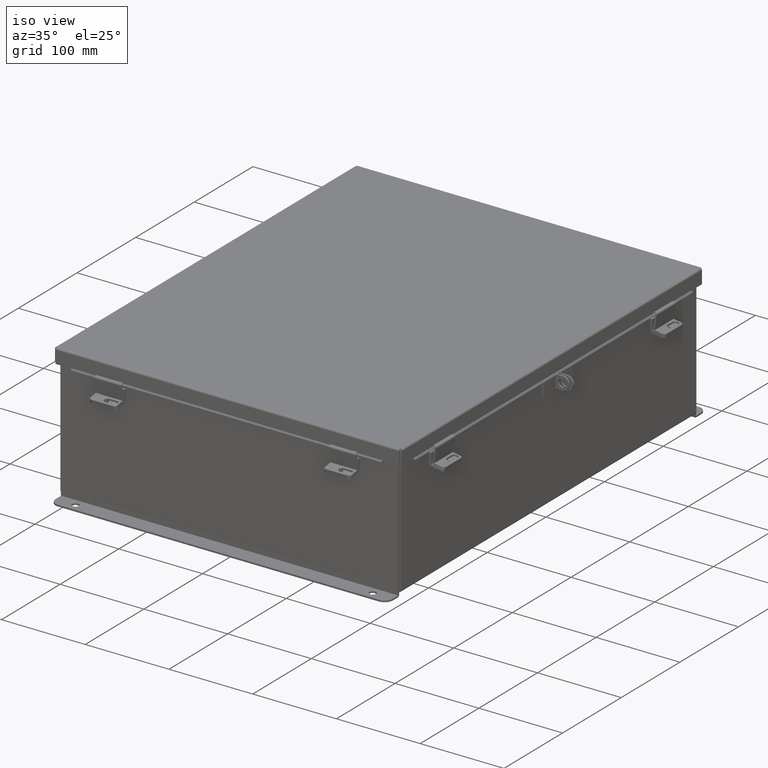
[diagram: clean part render]
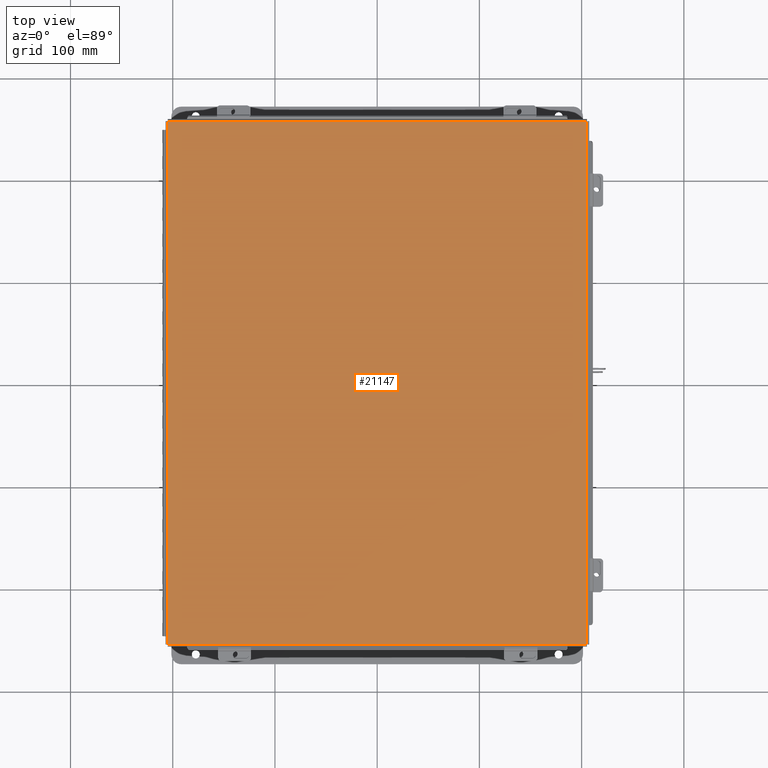
[diagram: tour spotlight — one face highlighted and labeled with its STEP entity id]
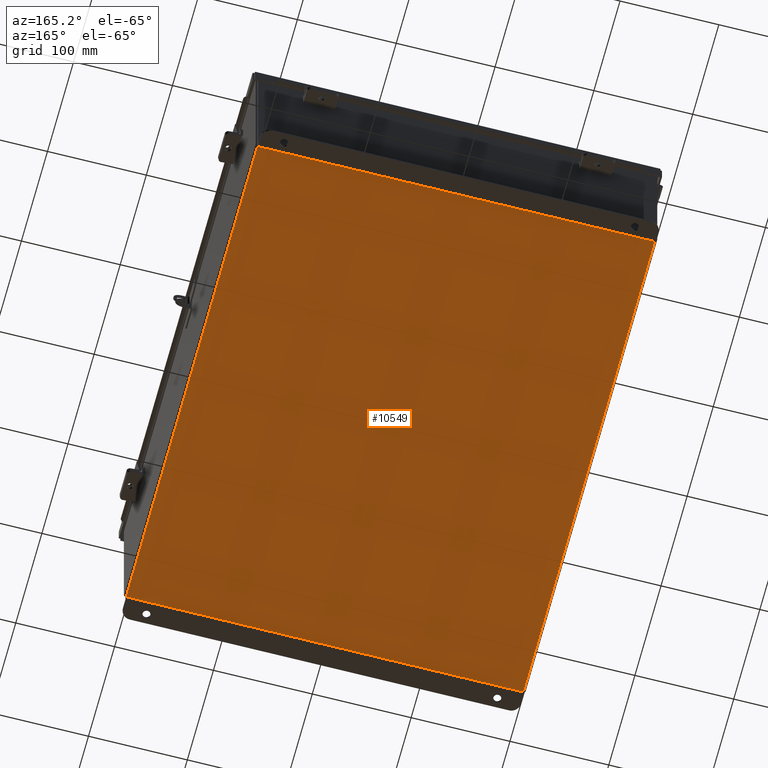
[diagram: tour spotlight — one face highlighted and labeled with its STEP entity id]
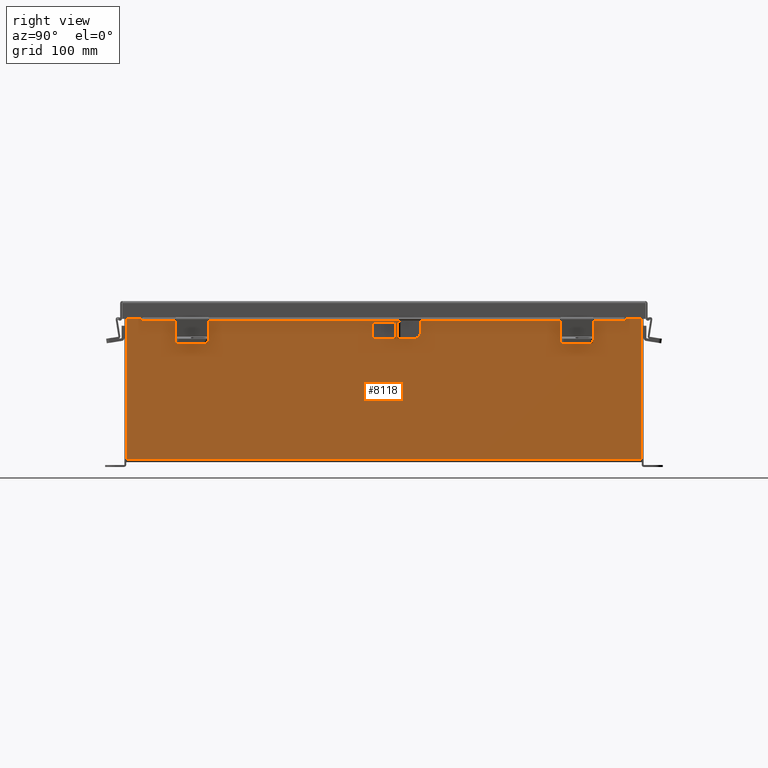
[diagram: tour spotlight — one face highlighted and labeled with its STEP entity id]
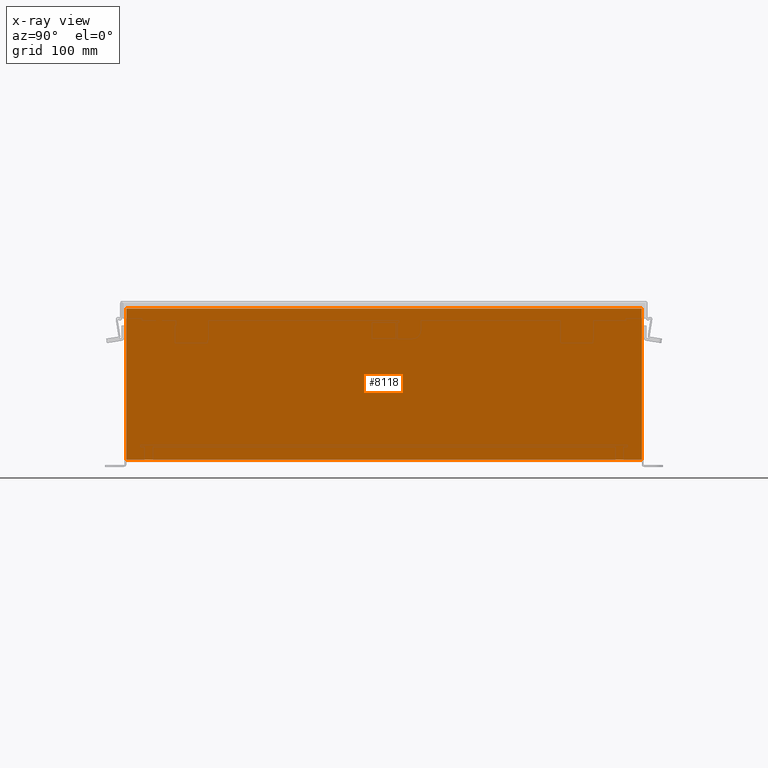
[diagram: x-ray of the same camera — body ghosted, this tour face saturated]
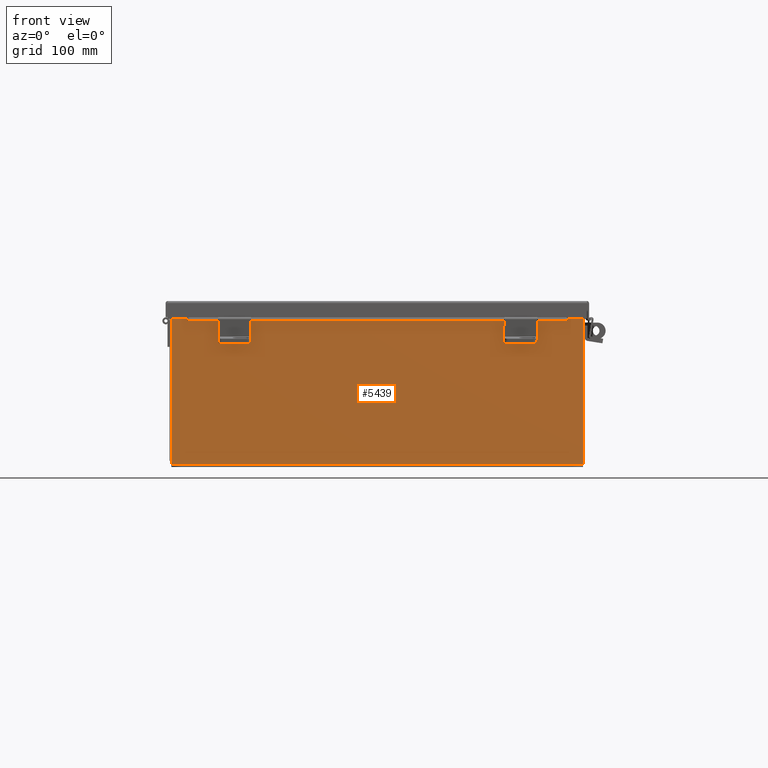
[diagram: tour spotlight — one face highlighted and labeled with its STEP entity id]
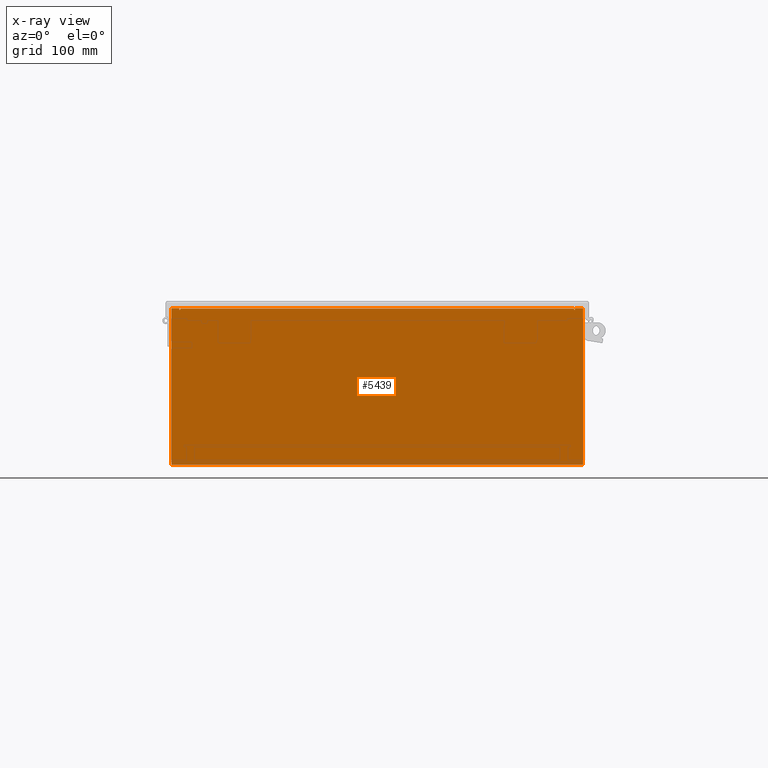
[diagram: x-ray of the same camera — body ghosted, this tour face saturated]
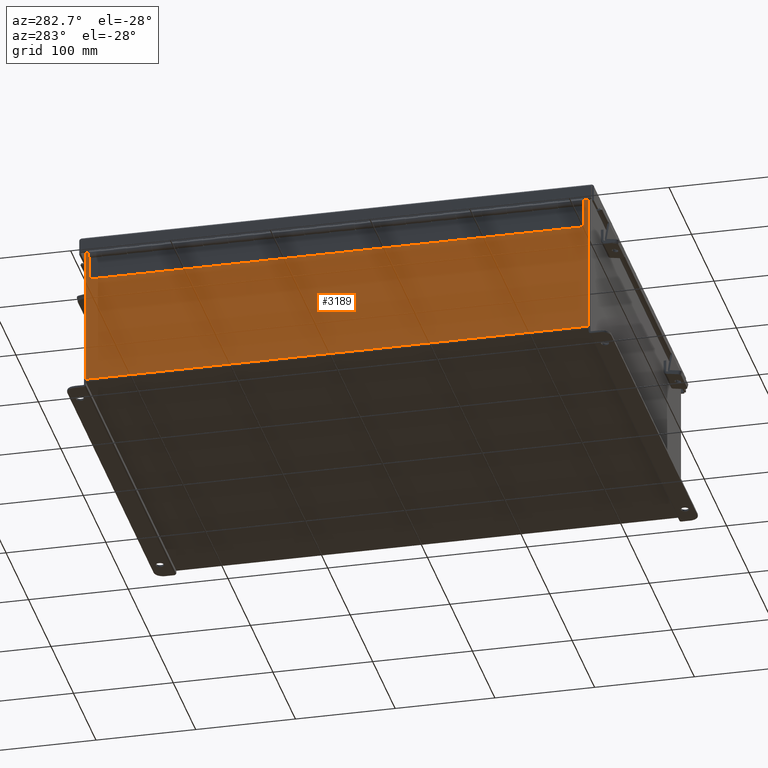
[diagram: tour spotlight — one face highlighted and labeled with its STEP entity id]
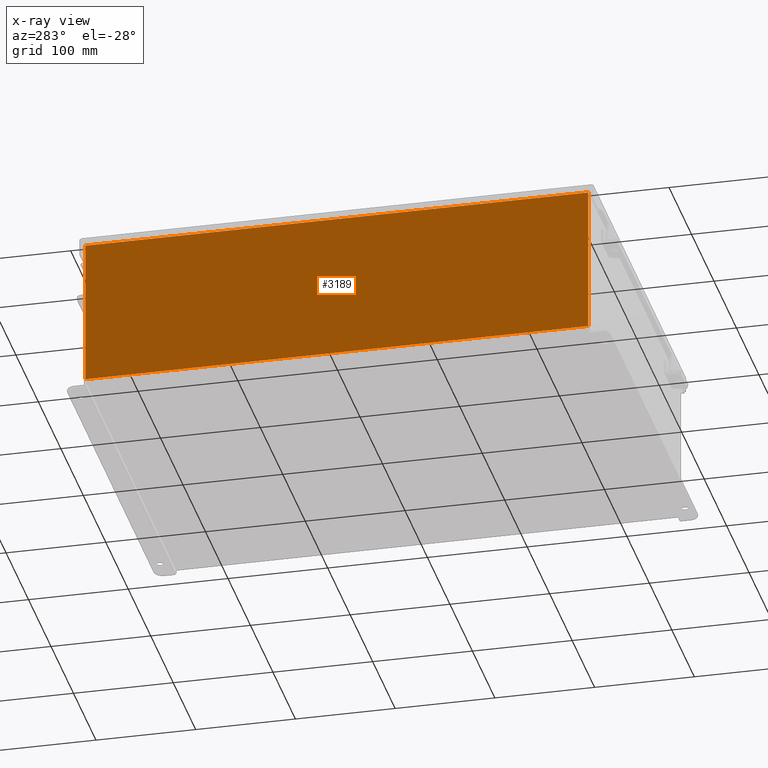
[diagram: x-ray of the same camera — body ghosted, this tour face saturated]
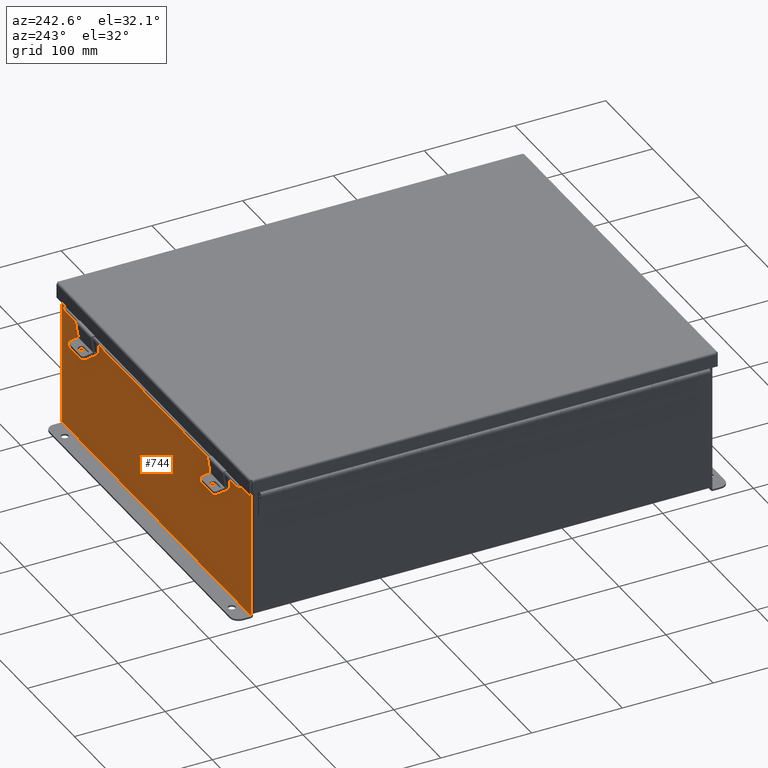
[diagram: tour spotlight — one face highlighted and labeled with its STEP entity id]
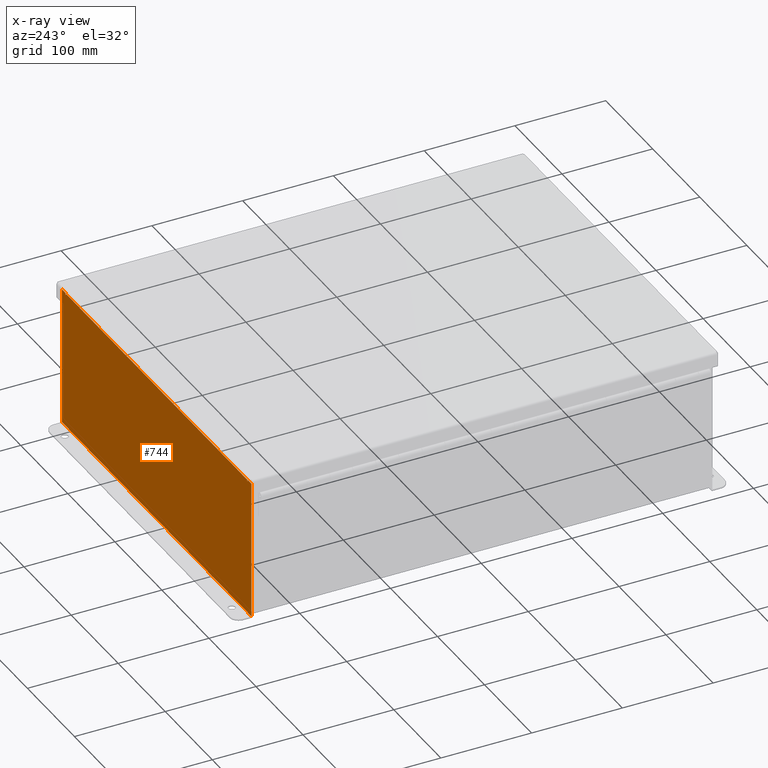
[diagram: x-ray of the same camera — body ghosted, this tour face saturated]
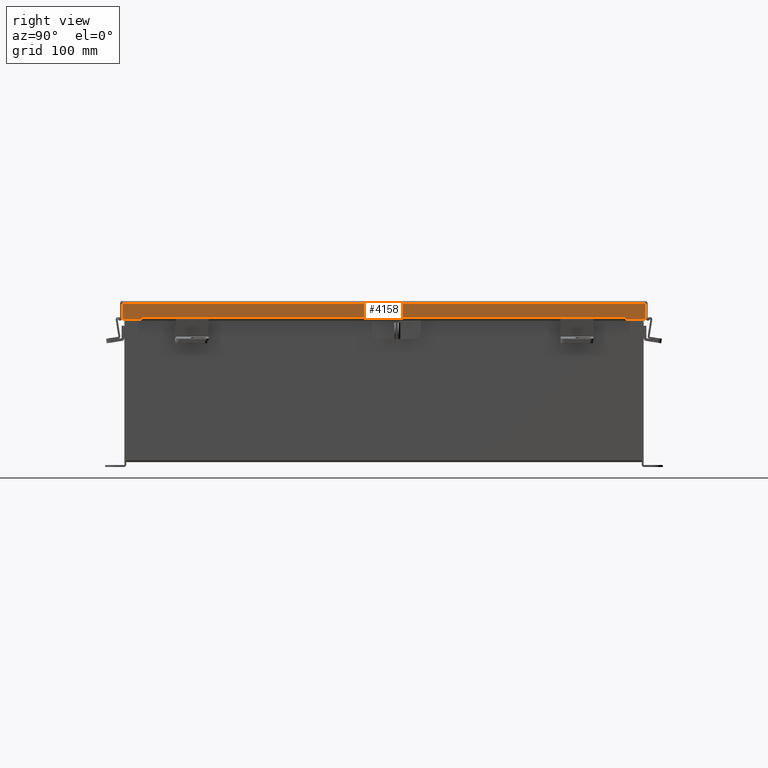
[diagram: tour spotlight — one face highlighted and labeled with its STEP entity id]
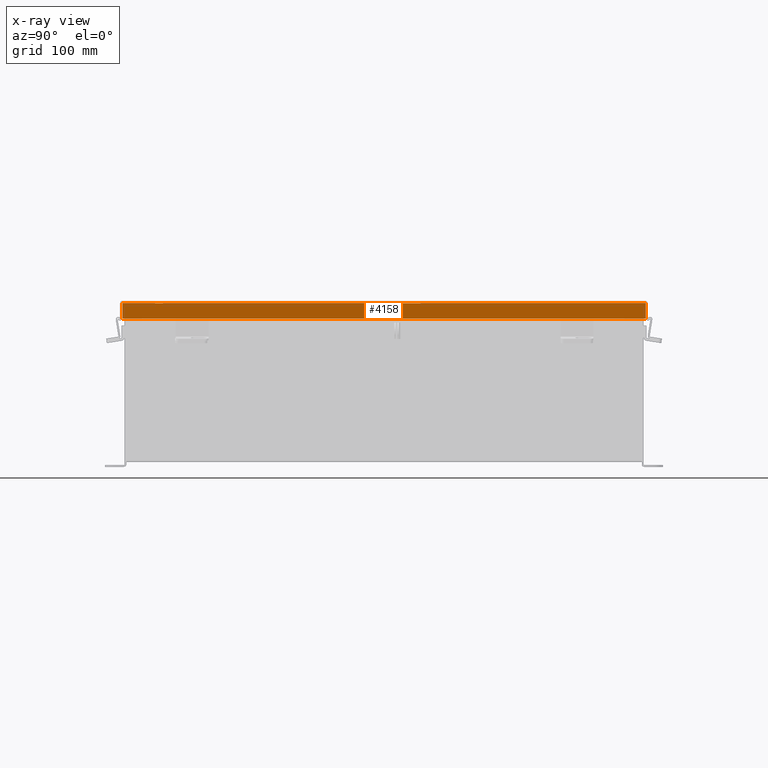
[diagram: x-ray of the same camera — body ghosted, this tour face saturated]
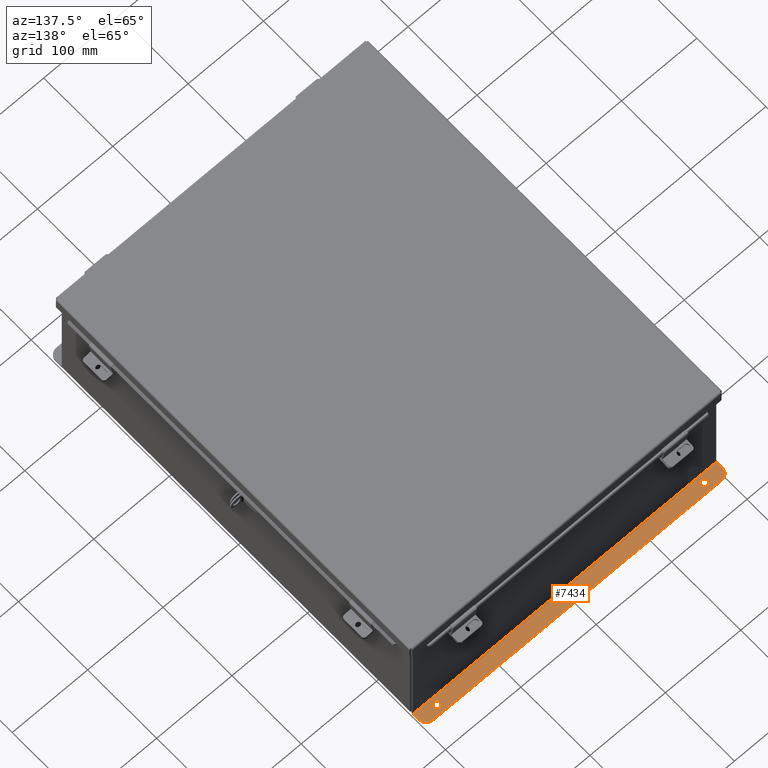
[diagram: tour spotlight — one face highlighted and labeled with its STEP entity id]
A machine part: a face-by-face anatomy tour. The part has 938 B-rep faces; the first image is the clean iso view, then the 8 largest visible faces are spotlighted one at a time (largest first), each with its STEP entity span.

Face 1 — top view, entity #21147. In plain terms, the highlighted planar face has unit normal (-0, -0, 1).
Definition (entity closure, byte-faithful):
#1525 = DIRECTION ( 'NONE',  ( -3.166671605124525800E-030, -1.000000000000000000, -1.853823127269377700E-029 ) ) ;
#2421 = PLANE ( 'NONE',  #20231 ) ;
#3212 = LINE ( 'NONE', #8577, #16986 ) ;
#3631 = EDGE_CURVE ( 'NONE', #20027, #15240, #6995, .T. ) ;
#6443 = VECTOR ( 'NONE', #1525, 39.37007874015748100 ) ;
#6580 = DIRECTION ( 'NONE',  ( -1.000000000000000000, -3.215975411700707400E-030, -0.0000000000000000000 ) ) ;
#6995 = LINE ( 'NONE', #22161, #6443 ) ;
#7557 = CARTESIAN_POINT ( 'NONE',  ( -8.068550000000033900, -10.07447893218813400, -0.07470000000000015500 ) ) ;
#7691 = DIRECTION ( 'NONE',  ( 5.938065620492508100E-059, -1.846427556282924300E-029, -1.000000000000000000 ) ) ;
#8105 = DIRECTION ( 'NONE',  ( 1.000000000000000000, 3.215975411700707400E-030, -0.0000000000000000000 ) ) ;
#8205 = EDGE_CURVE ( 'NONE', #20542, #19558, #21953, .T. ) ;
#8455 = ORIENTED_EDGE ( 'NONE', *, *, #15905, .T. ) ;
#8577 = CARTESIAN_POINT ( 'NONE',  ( 8.074478932188169400, -10.06854999999999800, -0.07470000000000015500 ) ) ;
#8718 = CARTESIAN_POINT ( 'NONE',  ( -8.068550000000033900, -10.06854999999999800, -0.07470000000000015500 ) ) ;
#9055 = CARTESIAN_POINT ( 'NONE',  ( 8.068550000000033900, 10.06854999999999800, -0.07470000000000015500 ) ) ;
#9553 = LINE ( 'NONE', #16701, #18722 ) ;
#10734 = ORIENTED_EDGE ( 'NONE', *, *, #11299, .T. ) ;
#11299 = EDGE_CURVE ( 'NONE', #15240, #20542, #3212, .T. ) ;
#12776 = VECTOR ( 'NONE', #13354, 39.37007874015748100 ) ;
#13354 = DIRECTION ( 'NONE',  ( 3.166671605124525800E-030, 1.000000000000000000, 1.853823127269377700E-029 ) ) ;
#14653 = CARTESIAN_POINT ( 'NONE',  ( 8.068550000000033900, -10.06854999999999800, -0.07470000000000015500 ) ) ;
#15240 = VERTEX_POINT ( 'NONE', #14653 ) ;
#15552 = FACE_OUTER_BOUND ( 'NONE', #17335, .T. ) ;
#15905 = EDGE_CURVE ( 'NONE', #19558, #20027, #9553, .T. ) ;
#16356 = ORIENTED_EDGE ( 'NONE', *, *, #3631, .T. ) ;
#16701 = CARTESIAN_POINT ( 'NONE',  ( -8.074478932188169400, 10.06854999999999800, -0.07470000000000015500 ) ) ;
#16986 = VECTOR ( 'NONE', #6580, 39.37007874015748100 ) ;
#17335 = EDGE_LOOP ( 'NONE', ( #8455, #16356, #10734, #20547 ) ) ;
#17994 = CARTESIAN_POINT ( 'NONE',  ( 0.0000000000000000000, 0.0000000000000000000, -0.07470000000000015500 ) ) ;
#18357 = CARTESIAN_POINT ( 'NONE',  ( -8.068550000000033900, 10.06854999999999800, -0.07470000000000015500 ) ) ;
#18722 = VECTOR ( 'NONE', #8105, 39.37007874015748100 ) ;
#19558 = VERTEX_POINT ( 'NONE', #18357 ) ;
#19814 = DIRECTION ( 'NONE',  ( -1.000000000000000000, -3.215975411700707400E-030, 0.0000000000000000000 ) ) ;
#20027 = VERTEX_POINT ( 'NONE', #9055 ) ;
#20231 = AXIS2_PLACEMENT_3D ( 'NONE', #17994, #7691, #19814 ) ;
#20542 = VERTEX_POINT ( 'NONE', #8718 ) ;
#20547 = ORIENTED_EDGE ( 'NONE', *, *, #8205, .T. ) ;
#21147 = ADVANCED_FACE ( 'NONE', ( #15552 ), #2421, .T. ) ;
#21953 = LINE ( 'NONE', #7557, #12776 ) ;
#22161 = CARTESIAN_POINT ( 'NONE',  ( 8.068550000000033900, 10.07447893218813400, -0.07470000000000015500 ) ) ;

Face 2 — auxiliary view, entity #10549. In plain terms, the highlighted planar face has unit normal (0, 0, -1).
Definition (entity closure, byte-faithful):
#550 = DIRECTION ( 'NONE',  ( 1.000000000000000000, -1.365923996832131600E-016, 0.0000000000000000000 ) ) ;
#766 = ORIENTED_EDGE ( 'NONE', *, *, #10144, .T. ) ;
#2845 = CARTESIAN_POINT ( 'NONE',  ( -7.912299999999996600, -9.925299999999998200, -0.07470000000000130700 ) ) ;
#2930 = CARTESIAN_POINT ( 'NONE',  ( 0.0000000000000000000, 0.0000000000000000000, -0.07470000000000000300 ) ) ;
#3223 = CARTESIAN_POINT ( 'NONE',  ( 7.912300000000002800, 9.925299999999992900, -0.07469999999999994700 ) ) ;
#4403 = LINE ( 'NONE', #6559, #17647 ) ;
#4473 = DIRECTION ( 'NONE',  ( -1.000000000000000000, -0.0000000000000000000, -0.0000000000000000000 ) ) ;
#5987 = LINE ( 'NONE', #21265, #14668 ) ;
#6134 = AXIS2_PLACEMENT_3D ( 'NONE', #2930, #16746, #8150 ) ;
#6374 = CARTESIAN_POINT ( 'NONE',  ( -7.912299999999996600, -9.925299999999998200, -0.07470000000000130700 ) ) ;
#6559 = CARTESIAN_POINT ( 'NONE',  ( -7.999999999999996400, 9.925299999999998200, -0.07470000000000000300 ) ) ;
#6764 = CARTESIAN_POINT ( 'NONE',  ( -7.912299999999996600, 9.925299999999998200, -0.07470000000000000300 ) ) ;
#6891 = EDGE_CURVE ( 'NONE', #10358, #11718, #4403, .T. ) ;
#7682 = VERTEX_POINT ( 'NONE', #18254 ) ;
#7806 = EDGE_LOOP ( 'NONE', ( #19819, #20201, #11382, #766 ) ) ;
#8150 = DIRECTION ( 'NONE',  ( -1.000000000000000000, 0.0000000000000000000, -0.0000000000000000000 ) ) ;
#8984 = LINE ( 'NONE', #11002, #22238 ) ;
#9155 = VECTOR ( 'NONE', #11579, 39.37007874015748100 ) ;
#9481 = VERTEX_POINT ( 'NONE', #2845 ) ;
#10144 = EDGE_CURVE ( 'NONE', #9481, #11718, #18325, .T. ) ;
#10358 = VERTEX_POINT ( 'NONE', #3223 ) ;
#10549 = ADVANCED_FACE ( 'NONE', ( #13284 ), #16823, .T. ) ;
#11002 = CARTESIAN_POINT ( 'NONE',  ( 7.912300000000002800, 9.925299999999996500, -0.07469999999999994700 ) ) ;
#11382 = ORIENTED_EDGE ( 'NONE', *, *, #16337, .F. ) ;
#11579 = DIRECTION ( 'NONE',  ( -0.0000000000000000000, 1.000000000000000000, 8.208677865577646300E-017 ) ) ;
#11718 = VERTEX_POINT ( 'NONE', #6764 ) ;
#13284 = FACE_OUTER_BOUND ( 'NONE', #7806, .T. ) ;
#14539 = DIRECTION ( 'NONE',  ( -0.0000000000000000000, -1.000000000000000000, -0.0000000000000000000 ) ) ;
#14668 = VECTOR ( 'NONE', #550, 39.37007874015748100 ) ;
#16337 = EDGE_CURVE ( 'NONE', #9481, #7682, #5987, .T. ) ;
#16396 = EDGE_CURVE ( 'NONE', #10358, #7682, #8984, .T. ) ;
#16746 = DIRECTION ( 'NONE',  ( 0.0000000000000000000, 0.0000000000000000000, -1.000000000000000000 ) ) ;
#16823 = PLANE ( 'NONE',  #6134 ) ;
#17647 = VECTOR ( 'NONE', #4473, 39.37007874015748100 ) ;
#18254 = CARTESIAN_POINT ( 'NONE',  ( 7.912300000000002800, -9.925300000000000000, -0.07470000000000000300 ) ) ;
#18325 = LINE ( 'NONE', #6374, #9155 ) ;
#19819 = ORIENTED_EDGE ( 'NONE', *, *, #6891, .F. ) ;
#20201 = ORIENTED_EDGE ( 'NONE', *, *, #16396, .T. ) ;
#21265 = CARTESIAN_POINT ( 'NONE',  ( -7.999999999999996400, -9.925299999999998200, -0.07470000000000000300 ) ) ;
#22238 = VECTOR ( 'NONE', #14539, 39.37007874015748100 ) ;

Face 3 — right view, entity #8118. An x-ray twin of the same camera follows (body ghosted, this face saturated) — the face is partly hidden behind the body. In plain terms, the highlighted planar face has unit normal (-1, 0, 0).
Definition (entity closure, byte-faithful):
#88 = CARTESIAN_POINT ( 'NONE',  ( 8.000000000000003600, 0.0000000000000000000, -2.865025583355396000E-014 ) ) ;
#234 = CARTESIAN_POINT ( 'NONE',  ( 8.000000000000003600, 9.925299999999998200, -2.494518699214680400E-014 ) ) ;
#818 = VERTEX_POINT ( 'NONE', #8306 ) ;
#1105 = CARTESIAN_POINT ( 'NONE',  ( 8.000000000000023100, -9.925300000000000000, 5.837600000000000100 ) ) ;
#1889 = CARTESIAN_POINT ( 'NONE',  ( 8.000000000000023100, 9.925299999999992900, 5.837600000000000100 ) ) ;
#2671 = VECTOR ( 'NONE', #17727, 39.37007874015748100 ) ;
#3341 = EDGE_CURVE ( 'NONE', #20278, #17348, #7286, .T. ) ;
#3450 = DIRECTION ( 'NONE',  ( -0.0000000000000000000, -1.000000000000000000, -0.0000000000000000000 ) ) ;
#4627 = EDGE_CURVE ( 'NONE', #818, #17097, #12147, .T. ) ;
#4957 = VECTOR ( 'NONE', #3450, 39.37007874015748100 ) ;
#5653 = CARTESIAN_POINT ( 'NONE',  ( 8.000000000000003600, -9.925300000000000000, -2.865025583355396000E-014 ) ) ;
#5740 = DIRECTION ( 'NONE',  ( -0.0000000000000000000, -1.000000000000000000, -0.0000000000000000000 ) ) ;
#6236 = FACE_OUTER_BOUND ( 'NONE', #16845, .T. ) ;
#7286 = LINE ( 'NONE', #5653, #2671 ) ;
#7486 = VECTOR ( 'NONE', #17042, 39.37007874015748100 ) ;
#8118 = ADVANCED_FACE ( 'NONE', ( #6236 ), #11522, .F. ) ;
#8306 = CARTESIAN_POINT ( 'NONE',  ( 8.000000000000003600, 9.925299999999992900, 0.01299999999999984300 ) ) ;
#9102 = CARTESIAN_POINT ( 'NONE',  ( 8.000000000000003600, -9.925300000000000000, 0.01299999999999984300 ) ) ;
#9590 = LINE ( 'NONE', #15472, #4957 ) ;
#10056 = ORIENTED_EDGE ( 'NONE', *, *, #3341, .T. ) ;
#11522 = PLANE ( 'NONE',  #15846 ) ;
#11716 = DIRECTION ( 'NONE',  ( 3.548703509357741000E-015, 0.0000000000000000000, 1.000000000000000000 ) ) ;
#12147 = LINE ( 'NONE', #234, #7486 ) ;
#13200 = DIRECTION ( 'NONE',  ( -1.000000000000000000, 0.0000000000000000000, 3.548703509357741000E-015 ) ) ;
#13791 = ORIENTED_EDGE ( 'NONE', *, *, #18385, .F. ) ;
#14851 = LINE ( 'NONE', #9102, #18899 ) ;
#14909 = EDGE_CURVE ( 'NONE', #17097, #20278, #9590, .T. ) ;
#15472 = CARTESIAN_POINT ( 'NONE',  ( 8.000000000000023100, 9.925299999999996500, 5.837600000000000100 ) ) ;
#15846 = AXIS2_PLACEMENT_3D ( 'NONE', #88, #13200, #11716 ) ;
#16845 = EDGE_LOOP ( 'NONE', ( #18712, #10056, #13791, #22210 ) ) ;
#17042 = DIRECTION ( 'NONE',  ( 3.548703509357741800E-015, -3.735477378271307500E-016, 1.000000000000000000 ) ) ;
#17097 = VERTEX_POINT ( 'NONE', #1889 ) ;
#17348 = VERTEX_POINT ( 'NONE', #20151 ) ;
#17727 = DIRECTION ( 'NONE',  ( -3.548703509357741800E-015, 0.0000000000000000000, -1.000000000000000000 ) ) ;
#18385 = EDGE_CURVE ( 'NONE', #818, #17348, #14851, .T. ) ;
#18712 = ORIENTED_EDGE ( 'NONE', *, *, #14909, .T. ) ;
#18899 = VECTOR ( 'NONE', #5740, 39.37007874015748100 ) ;
#20151 = CARTESIAN_POINT ( 'NONE',  ( 8.000000000000003600, -9.925300000000000000, 0.01299999999999984300 ) ) ;
#20278 = VERTEX_POINT ( 'NONE', #1105 ) ;
#22210 = ORIENTED_EDGE ( 'NONE', *, *, #4627, .T. ) ;

Face 4 — front view, entity #5439. An x-ray twin of the same camera follows (body ghosted, this face saturated) — the face is partly hidden behind the body. In plain terms, the highlighted planar face has unit normal (-0, 1, -0).
Definition (entity closure, byte-faithful):
#200 = VECTOR ( 'NONE', #918, 39.37007874015748100 ) ;
#315 = VERTEX_POINT ( 'NONE', #10609 ) ;
#746 = LINE ( 'NONE', #4713, #9413 ) ;
#879 = EDGE_CURVE ( 'NONE', #315, #11404, #20682, .T. ) ;
#918 = DIRECTION ( 'NONE',  ( 0.0000000000000000000, 0.0000000000000000000, 1.000000000000000000 ) ) ;
#1001 = EDGE_CURVE ( 'NONE', #5038, #18583, #1198, .T. ) ;
#1198 = LINE ( 'NONE', #11605, #19034 ) ;
#1947 = CARTESIAN_POINT ( 'NONE',  ( 7.582300000000006300, 0.0000000000000000000, 2.912299999999998800 ) ) ;
#2356 = ORIENTED_EDGE ( 'NONE', *, *, #12470, .F. ) ;
#2859 = LINE ( 'NONE', #14730, #15569 ) ;
#3027 = LINE ( 'NONE', #14124, #17345 ) ;
#3188 = ORIENTED_EDGE ( 'NONE', *, *, #16255, .F. ) ;
#3288 = CIRCLE ( 'NONE', #18808, 0.01867500000000003900 ) ;
#4246 = AXIS2_PLACEMENT_3D ( 'NONE', #12668, #5790, #8243 ) ;
#4362 = CARTESIAN_POINT ( 'NONE',  ( 7.925300000000007100, 0.0000000000000000000, 2.925300000000000000 ) ) ;
#4443 = VECTOR ( 'NONE', #6368, 39.37007874015748100 ) ;
#4713 = CARTESIAN_POINT ( 'NONE',  ( -7.925299999999992000, 0.0000000000000000000, 2.925300000000000000 ) ) ;
#4775 = ORIENTED_EDGE ( 'NONE', *, *, #15169, .T. ) ;
#4889 = CARTESIAN_POINT ( 'NONE',  ( -7.925299999999992000, 0.0000000000000000000, 2.925300000000000000 ) ) ;
#4972 = LINE ( 'NONE', #9880, #4443 ) ;
#4977 = CARTESIAN_POINT ( 'NONE',  ( 7.925300000000007100, 0.0000000000000000000, -3.099299999999999900 ) ) ;
#5038 = VERTEX_POINT ( 'NONE', #10115 ) ;
#5411 = EDGE_CURVE ( 'NONE', #5038, #11530, #20760, .T. ) ;
#5439 = ADVANCED_FACE ( 'NONE', ( #16659 ), #11648, .F. ) ;
#5790 = DIRECTION ( 'NONE',  ( 4.910036603141682400E-031, 1.000000000000000000, -0.0000000000000000000 ) ) ;
#5894 = EDGE_CURVE ( 'NONE', #18554, #14818, #2859, .T. ) ;
#6128 = ORIENTED_EDGE ( 'NONE', *, *, #21967, .F. ) ;
#6368 = DIRECTION ( 'NONE',  ( 1.000000000000000000, 4.910036603141682400E-031, -0.0000000000000000000 ) ) ;
#6456 = DIRECTION ( 'NONE',  ( 1.000000000000000000, 4.910036603141682400E-031, 0.0000000000000000000 ) ) ;
#7036 = ORIENTED_EDGE ( 'NONE', *, *, #1001, .F. ) ;
#7204 = DIRECTION ( 'NONE',  ( 0.0000000000000000000, 0.0000000000000000000, 1.000000000000000000 ) ) ;
#7308 = VERTEX_POINT ( 'NONE', #10812 ) ;
#7395 = CARTESIAN_POINT ( 'NONE',  ( -7.619649999999992900, 0.0000000000000000000, 2.925300000000000000 ) ) ;
#7758 = ORIENTED_EDGE ( 'NONE', *, *, #5411, .T. ) ;
#8243 = DIRECTION ( 'NONE',  ( 0.0000000000000000000, 0.0000000000000000000, -1.000000000000000000 ) ) ;
#9301 = DIRECTION ( 'NONE',  ( 0.0000000000000000000, 0.0000000000000000000, -1.000000000000000000 ) ) ;
#9413 = VECTOR ( 'NONE', #6456, 39.37007874015748100 ) ;
#9427 = VERTEX_POINT ( 'NONE', #7395 ) ;
#9552 = DIRECTION ( 'NONE',  ( 4.910036603141682400E-031, 1.000000000000000000, -0.0000000000000000000 ) ) ;
#9758 = DIRECTION ( 'NONE',  ( -4.910036603141682400E-031, -1.000000000000000000, -0.0000000000000000000 ) ) ;
#9855 = LINE ( 'NONE', #17901, #17955 ) ;
#9880 = CARTESIAN_POINT ( 'NONE',  ( -7.925299999999992000, 0.0000000000000000000, -3.099299999999999900 ) ) ;
#10115 = CARTESIAN_POINT ( 'NONE',  ( -7.582299999999992900, 2.185478394931410600E-015, 2.912299999999998800 ) ) ;
#10157 = VECTOR ( 'NONE', #16638, 39.37007874015748100 ) ;
#10482 = DIRECTION ( 'NONE',  ( 1.000000000000000000, 4.910036603141682400E-031, -0.0000000000000000000 ) ) ;
#10487 = VECTOR ( 'NONE', #21103, 39.37007874015748100 ) ;
#10609 = CARTESIAN_POINT ( 'NONE',  ( 7.619650000000005400, 0.0000000000000000000, 2.874949999999997900 ) ) ;
#10812 = CARTESIAN_POINT ( 'NONE',  ( 7.619650000000006300, 0.0000000000000000000, 2.925300000000000000 ) ) ;
#11035 = LINE ( 'NONE', #21858, #10487 ) ;
#11246 = VERTEX_POINT ( 'NONE', #4362 ) ;
#11249 = LINE ( 'NONE', #14932, #10157 ) ;
#11303 = CARTESIAN_POINT ( 'NONE',  ( -7.619650000000001800, 0.0000000000000000000, 0.0000000000000000000 ) ) ;
#11404 = VERTEX_POINT ( 'NONE', #20257 ) ;
#11498 = EDGE_LOOP ( 'NONE', ( #2356, #18102, #7036, #7758, #3188, #16174, #18418, #13048, #4775, #6128, #22434, #17291 ) ) ;
#11530 = VERTEX_POINT ( 'NONE', #1947 ) ;
#11605 = CARTESIAN_POINT ( 'NONE',  ( -7.582300000000001800, 0.0000000000000000000, 0.0000000000000000000 ) ) ;
#11648 = PLANE ( 'NONE',  #18591 ) ;
#12470 = EDGE_CURVE ( 'NONE', #19396, #9427, #17491, .T. ) ;
#12668 = CARTESIAN_POINT ( 'NONE',  ( 7.600975000000005400, 0.0000000000000000000, 2.874949999999997900 ) ) ;
#12828 = EDGE_CURVE ( 'NONE', #7308, #315, #11035, .T. ) ;
#13048 = ORIENTED_EDGE ( 'NONE', *, *, #21916, .T. ) ;
#13227 = DIRECTION ( 'NONE',  ( 0.0000000000000000000, 0.0000000000000000000, -1.000000000000000000 ) ) ;
#14124 = CARTESIAN_POINT ( 'NONE',  ( 7.582299999999997400, 0.0000000000000000000, 0.0000000000000000000 ) ) ;
#14263 = VERTEX_POINT ( 'NONE', #4977 ) ;
#14417 = CARTESIAN_POINT ( 'NONE',  ( -7.582299999999992900, 2.185478394931410600E-015, 2.912299999999998800 ) ) ;
#14730 = CARTESIAN_POINT ( 'NONE',  ( -7.925299999999992000, 0.0000000000000000000, 2.925300000000000000 ) ) ;
#14818 = VERTEX_POINT ( 'NONE', #4889 ) ;
#14932 = CARTESIAN_POINT ( 'NONE',  ( -7.925299999999992000, 0.0000000000000000000, 2.925300000000000000 ) ) ;
#15169 = EDGE_CURVE ( 'NONE', #11246, #14263, #9855, .T. ) ;
#15569 = VECTOR ( 'NONE', #20018, 39.37007874015748100 ) ;
#16174 = ORIENTED_EDGE ( 'NONE', *, *, #879, .F. ) ;
#16239 = CARTESIAN_POINT ( 'NONE',  ( -7.619649999999992000, 0.0000000000000000000, 2.874949999999997900 ) ) ;
#16255 = EDGE_CURVE ( 'NONE', #11404, #11530, #3027, .T. ) ;
#16455 = EDGE_CURVE ( 'NONE', #18583, #19396, #3288, .T. ) ;
#16572 = CARTESIAN_POINT ( 'NONE',  ( -7.582299999999992900, 0.0000000000000000000, 2.874949999999997900 ) ) ;
#16638 = DIRECTION ( 'NONE',  ( 1.000000000000000000, 4.910036603141682400E-031, 0.0000000000000000000 ) ) ;
#16659 = FACE_OUTER_BOUND ( 'NONE', #11498, .T. ) ;
#16964 = DIRECTION ( 'NONE',  ( 0.0000000000000000000, 0.0000000000000000000, -1.000000000000000000 ) ) ;
#17291 = ORIENTED_EDGE ( 'NONE', *, *, #20348, .T. ) ;
#17345 = VECTOR ( 'NONE', #7204, 39.37007874015748100 ) ;
#17491 = LINE ( 'NONE', #11303, #200 ) ;
#17901 = CARTESIAN_POINT ( 'NONE',  ( 7.925300000000007100, 0.0000000000000000000, 2.925300000000000000 ) ) ;
#17955 = VECTOR ( 'NONE', #9301, 39.37007874015748100 ) ;
#18102 = ORIENTED_EDGE ( 'NONE', *, *, #16455, .F. ) ;
#18418 = ORIENTED_EDGE ( 'NONE', *, *, #12828, .F. ) ;
#18554 = VERTEX_POINT ( 'NONE', #21670 ) ;
#18583 = VERTEX_POINT ( 'NONE', #16572 ) ;
#18591 = AXIS2_PLACEMENT_3D ( 'NONE', #20905, #9758, #16964 ) ;
#18808 = AXIS2_PLACEMENT_3D ( 'NONE', #19882, #9552, #21629 ) ;
#19034 = VECTOR ( 'NONE', #13227, 39.37007874015748100 ) ;
#19396 = VERTEX_POINT ( 'NONE', #16239 ) ;
#19882 = CARTESIAN_POINT ( 'NONE',  ( -7.600974999999992900, 0.0000000000000000000, 2.874949999999997900 ) ) ;
#20018 = DIRECTION ( 'NONE',  ( 0.0000000000000000000, 0.0000000000000000000, 1.000000000000000000 ) ) ;
#20257 = CARTESIAN_POINT ( 'NONE',  ( 7.582300000000006300, 0.0000000000000000000, 2.874949999999997900 ) ) ;
#20348 = EDGE_CURVE ( 'NONE', #14818, #9427, #746, .T. ) ;
#20682 = CIRCLE ( 'NONE', #4246, 0.01867500000000003900 ) ;
#20760 = LINE ( 'NONE', #14417, #22388 ) ;
#20905 = CARTESIAN_POINT ( 'NONE',  ( 0.0000000000000000000, 0.0000000000000000000, 0.0000000000000000000 ) ) ;
#21103 = DIRECTION ( 'NONE',  ( 0.0000000000000000000, 0.0000000000000000000, -1.000000000000000000 ) ) ;
#21629 = DIRECTION ( 'NONE',  ( 0.0000000000000000000, 0.0000000000000000000, -1.000000000000000000 ) ) ;
#21670 = CARTESIAN_POINT ( 'NONE',  ( -7.925299999999992000, 0.0000000000000000000, -3.099299999999999900 ) ) ;
#21858 = CARTESIAN_POINT ( 'NONE',  ( 7.619649999999997400, 0.0000000000000000000, 0.0000000000000000000 ) ) ;
#21916 = EDGE_CURVE ( 'NONE', #7308, #11246, #11249, .T. ) ;
#21967 = EDGE_CURVE ( 'NONE', #18554, #14263, #4972, .T. ) ;
#22388 = VECTOR ( 'NONE', #10482, 39.37007874015748100 ) ;
#22434 = ORIENTED_EDGE ( 'NONE', *, *, #5894, .T. ) ;

Face 5 — auxiliary view, entity #3189. An x-ray twin of the same camera follows (body ghosted, this face saturated) — the face is partly hidden behind the body. In plain terms, the highlighted planar face has unit normal (1, 0, 0).
Definition (entity closure, byte-faithful):
#789 = CARTESIAN_POINT ( 'NONE',  ( -7.999999999999996400, 9.925299999999998200, 0.01300000000000009800 ) ) ;
#868 = AXIS2_PLACEMENT_3D ( 'NONE', #2820, #11120, #5738 ) ;
#2243 = CARTESIAN_POINT ( 'NONE',  ( -7.999999999999996400, 9.925299999999998200, -2.865025583355396000E-014 ) ) ;
#2820 = CARTESIAN_POINT ( 'NONE',  ( -7.999999999999996400, 0.0000000000000000000, -2.865025583355396000E-014 ) ) ;
#2984 = DIRECTION ( 'NONE',  ( -3.548703509357741800E-015, 3.735477378271307500E-016, 1.000000000000000000 ) ) ;
#3189 = ADVANCED_FACE ( 'NONE', ( #10611 ), #19919, .F. ) ;
#4479 = EDGE_CURVE ( 'NONE', #9034, #17733, #6131, .T. ) ;
#4846 = DIRECTION ( 'NONE',  ( -1.953496330014866600E-031, 1.000000000000000000, 5.504816970095139000E-017 ) ) ;
#5264 = EDGE_CURVE ( 'NONE', #9034, #18985, #15334, .T. ) ;
#5621 = VECTOR ( 'NONE', #4846, 39.37007874015748100 ) ;
#5645 = DIRECTION ( 'NONE',  ( 3.548703509357741800E-015, 0.0000000000000000000, -1.000000000000000000 ) ) ;
#5738 = DIRECTION ( 'NONE',  ( 3.548703509357741000E-015, 0.0000000000000000000, -1.000000000000000000 ) ) ;
#5948 = LINE ( 'NONE', #2243, #13019 ) ;
#6131 = LINE ( 'NONE', #15913, #14304 ) ;
#6293 = DIRECTION ( 'NONE',  ( 0.0000000000000000000, 1.000000000000000000, 0.0000000000000000000 ) ) ;
#6713 = ORIENTED_EDGE ( 'NONE', *, *, #17710, .T. ) ;
#9034 = VERTEX_POINT ( 'NONE', #20415 ) ;
#10611 = FACE_OUTER_BOUND ( 'NONE', #16106, .T. ) ;
#11120 = DIRECTION ( 'NONE',  ( 1.000000000000000000, 0.0000000000000000000, 3.548703509357741000E-015 ) ) ;
#12750 = VECTOR ( 'NONE', #6293, 39.37007874015748100 ) ;
#13019 = VECTOR ( 'NONE', #5645, 39.37007874015748100 ) ;
#13285 = VERTEX_POINT ( 'NONE', #15455 ) ;
#14304 = VECTOR ( 'NONE', #2984, 39.37007874015748100 ) ;
#15217 = ORIENTED_EDGE ( 'NONE', *, *, #4479, .T. ) ;
#15334 = LINE ( 'NONE', #18182, #5621 ) ;
#15455 = CARTESIAN_POINT ( 'NONE',  ( -8.000000000000017800, 9.925299999999998200, 5.837599999999999200 ) ) ;
#15913 = CARTESIAN_POINT ( 'NONE',  ( -7.999999999999996400, -9.925299999999998200, -2.494518699214680400E-014 ) ) ;
#16106 = EDGE_LOOP ( 'NONE', ( #17043, #6713, #16336, #15217 ) ) ;
#16128 = CARTESIAN_POINT ( 'NONE',  ( -8.000000000000017800, -9.925299999999996500, 5.837599999999999200 ) ) ;
#16336 = ORIENTED_EDGE ( 'NONE', *, *, #5264, .F. ) ;
#17043 = ORIENTED_EDGE ( 'NONE', *, *, #17923, .T. ) ;
#17290 = LINE ( 'NONE', #21800, #12750 ) ;
#17710 = EDGE_CURVE ( 'NONE', #13285, #18985, #5948, .T. ) ;
#17733 = VERTEX_POINT ( 'NONE', #16128 ) ;
#17923 = EDGE_CURVE ( 'NONE', #17733, #13285, #17290, .T. ) ;
#18182 = CARTESIAN_POINT ( 'NONE',  ( -7.999999999999996400, 9.925299999999998200, 0.01299999999999984300 ) ) ;
#18985 = VERTEX_POINT ( 'NONE', #789 ) ;
#19919 = PLANE ( 'NONE',  #868 ) ;
#20415 = CARTESIAN_POINT ( 'NONE',  ( -7.999999999999996400, -9.925299999999996500, 0.01299999999999875000 ) ) ;
#21800 = CARTESIAN_POINT ( 'NONE',  ( -8.000000000000017800, -9.925299999999998200, 5.837599999999999200 ) ) ;

Face 6 — auxiliary view, entity #744. An x-ray twin of the same camera follows (body ghosted, this face saturated) — the face is partly hidden behind the body. In plain terms, the highlighted planar face has unit normal (0, -1, 0).
Definition (entity closure, byte-faithful):
#651 = VERTEX_POINT ( 'NONE', #15212 ) ;
#744 = ADVANCED_FACE ( 'NONE', ( #14239 ), #1613, .F. ) ;
#1039 = VECTOR ( 'NONE', #16116, 39.37007874015748100 ) ;
#1566 = DIRECTION ( 'NONE',  ( 0.0000000000000000000, 0.0000000000000000000, 1.000000000000000000 ) ) ;
#1601 = LINE ( 'NONE', #17171, #19450 ) ;
#1613 = PLANE ( 'NONE',  #14934 ) ;
#1681 = EDGE_CURVE ( 'NONE', #11913, #19726, #11765, .T. ) ;
#1785 = VERTEX_POINT ( 'NONE', #11221 ) ;
#3003 = VECTOR ( 'NONE', #17286, 39.37007874015748100 ) ;
#3814 = LINE ( 'NONE', #19980, #7869 ) ;
#4032 = CARTESIAN_POINT ( 'NONE',  ( -7.925300000000000900, 0.0000000000000000000, 2.925299999999999600 ) ) ;
#4261 = CARTESIAN_POINT ( 'NONE',  ( -7.619650000000001800, 0.0000000000000000000, 0.0000000000000000000 ) ) ;
#4505 = DIRECTION ( 'NONE',  ( 1.000000000000000000, -0.0000000000000000000, -0.0000000000000000000 ) ) ;
#4664 = CARTESIAN_POINT ( 'NONE',  ( 7.582299999999997400, 0.0000000000000000000, 0.0000000000000000000 ) ) ;
#4855 = VECTOR ( 'NONE', #12795, 39.37007874015748100 ) ;
#5036 = CARTESIAN_POINT ( 'NONE',  ( -7.925300000000000900, 0.0000000000000000000, -3.099299999999999900 ) ) ;
#6380 = DIRECTION ( 'NONE',  ( 0.0000000000000000000, 0.0000000000000000000, 1.000000000000000000 ) ) ;
#6681 = AXIS2_PLACEMENT_3D ( 'NONE', #8874, #15620, #7722 ) ;
#6755 = VERTEX_POINT ( 'NONE', #8557 ) ;
#7002 = ORIENTED_EDGE ( 'NONE', *, *, #11446, .T. ) ;
#7375 = DIRECTION ( 'NONE',  ( -0.0000000000000000000, 1.000000000000000000, -0.0000000000000000000 ) ) ;
#7426 = DIRECTION ( 'NONE',  ( 0.0000000000000000000, 0.0000000000000000000, -1.000000000000000000 ) ) ;
#7722 = DIRECTION ( 'NONE',  ( 0.0000000000000000000, 0.0000000000000000000, -1.000000000000000000 ) ) ;
#7869 = VECTOR ( 'NONE', #10880, 39.37007874015748100 ) ;
#7941 = EDGE_CURVE ( 'NONE', #651, #8647, #3814, .T. ) ;
#8112 = EDGE_CURVE ( 'NONE', #18874, #22186, #10335, .T. ) ;
#8142 = CARTESIAN_POINT ( 'NONE',  ( -7.925300000000000900, 0.0000000000000000000, -3.099299999999999900 ) ) ;
#8176 = CARTESIAN_POINT ( 'NONE',  ( 7.925299999999998200, 0.0000000000000000000, -3.099299999999999900 ) ) ;
#8327 = DIRECTION ( 'NONE',  ( 1.000000000000000000, 0.0000000000000000000, 0.0000000000000000000 ) ) ;
#8557 = CARTESIAN_POINT ( 'NONE',  ( 7.925299999999998200, 0.0000000000000000000, 2.925299999999999600 ) ) ;
#8593 = VECTOR ( 'NONE', #4505, 39.37007874015748100 ) ;
#8647 = VERTEX_POINT ( 'NONE', #12045 ) ;
#8792 = CARTESIAN_POINT ( 'NONE',  ( -7.619650000000001800, 0.0000000000000000000, 2.925299999999999600 ) ) ;
#8874 = CARTESIAN_POINT ( 'NONE',  ( 7.600974999999996500, 0.0000000000000000000, 2.874949999999998300 ) ) ;
#9158 = LINE ( 'NONE', #5036, #8593 ) ;
#9353 = LINE ( 'NONE', #16910, #17992 ) ;
#9584 = CARTESIAN_POINT ( 'NONE',  ( 7.582299999999997400, 0.0000000000000000000, 2.912299999999998300 ) ) ;
#9592 = CARTESIAN_POINT ( 'NONE',  ( 0.0000000000000000000, 0.0000000000000000000, 0.0000000000000000000 ) ) ;
#9710 = LINE ( 'NONE', #4032, #1039 ) ;
#9801 = ORIENTED_EDGE ( 'NONE', *, *, #15731, .F. ) ;
#9997 = CARTESIAN_POINT ( 'NONE',  ( 7.582299999999997400, 0.0000000000000000000, 2.874949999999998300 ) ) ;
#10335 = LINE ( 'NONE', #4261, #18946 ) ;
#10744 = EDGE_CURVE ( 'NONE', #11087, #22186, #19749, .T. ) ;
#10860 = ORIENTED_EDGE ( 'NONE', *, *, #14206, .T. ) ;
#10880 = DIRECTION ( 'NONE',  ( 0.0000000000000000000, 0.0000000000000000000, -1.000000000000000000 ) ) ;
#11087 = VERTEX_POINT ( 'NONE', #21943 ) ;
#11186 = DIRECTION ( 'NONE',  ( 0.0000000000000000000, -0.0000000000000000000, -1.000000000000000000 ) ) ;
#11221 = CARTESIAN_POINT ( 'NONE',  ( 7.619649999999997400, 0.0000000000000000000, 2.925299999999999600 ) ) ;
#11446 = EDGE_CURVE ( 'NONE', #6755, #19062, #1601, .T. ) ;
#11765 = CIRCLE ( 'NONE', #6681, 0.01867500000000003900 ) ;
#11913 = VERTEX_POINT ( 'NONE', #22203 ) ;
#12045 = CARTESIAN_POINT ( 'NONE',  ( -7.582300000000001800, 0.0000000000000000000, 2.874949999999998300 ) ) ;
#12223 = EDGE_CURVE ( 'NONE', #19753, #19062, #9158, .T. ) ;
#12264 = LINE ( 'NONE', #15542, #3003 ) ;
#12299 = LINE ( 'NONE', #19541, #21463 ) ;
#12795 = DIRECTION ( 'NONE',  ( 1.000000000000000000, 0.0000000000000000000, 0.0000000000000000000 ) ) ;
#12824 = CIRCLE ( 'NONE', #22346, 0.01867500000000003900 ) ;
#13331 = CARTESIAN_POINT ( 'NONE',  ( -7.925300000000000900, 0.0000000000000000000, 2.925299999999999600 ) ) ;
#14206 = EDGE_CURVE ( 'NONE', #651, #20240, #9353, .T. ) ;
#14239 = FACE_OUTER_BOUND ( 'NONE', #21018, .T. ) ;
#14934 = AXIS2_PLACEMENT_3D ( 'NONE', #9592, #19662, #11186 ) ;
#15212 = CARTESIAN_POINT ( 'NONE',  ( -7.582300000000001800, 4.370956789862821100E-015, 2.912299999999998300 ) ) ;
#15542 = CARTESIAN_POINT ( 'NONE',  ( -7.925300000000000900, 0.0000000000000000000, 2.925299999999999600 ) ) ;
#15620 = DIRECTION ( 'NONE',  ( -0.0000000000000000000, 1.000000000000000000, -0.0000000000000000000 ) ) ;
#15669 = ORIENTED_EDGE ( 'NONE', *, *, #18881, .T. ) ;
#15698 = EDGE_CURVE ( 'NONE', #8647, #18874, #12824, .T. ) ;
#15731 = EDGE_CURVE ( 'NONE', #1785, #11913, #12299, .T. ) ;
#16043 = CARTESIAN_POINT ( 'NONE',  ( -7.619650000000000900, 0.0000000000000000000, 2.874949999999998300 ) ) ;
#16099 = ORIENTED_EDGE ( 'NONE', *, *, #7941, .F. ) ;
#16116 = DIRECTION ( 'NONE',  ( 1.000000000000000000, 0.0000000000000000000, 0.0000000000000000000 ) ) ;
#16769 = EDGE_CURVE ( 'NONE', #19753, #11087, #12264, .T. ) ;
#16910 = CARTESIAN_POINT ( 'NONE',  ( -7.582300000000001800, 4.370956789862821100E-015, 2.912299999999998300 ) ) ;
#17171 = CARTESIAN_POINT ( 'NONE',  ( 7.925299999999998200, 0.0000000000000000000, 2.925299999999999600 ) ) ;
#17286 = DIRECTION ( 'NONE',  ( -0.0000000000000000000, -0.0000000000000000000, 1.000000000000000000 ) ) ;
#17347 = EDGE_CURVE ( 'NONE', #19726, #20240, #20299, .T. ) ;
#17700 = CARTESIAN_POINT ( 'NONE',  ( -7.600975000000000900, 0.0000000000000000000, 2.874949999999998300 ) ) ;
#17992 = VECTOR ( 'NONE', #8327, 39.37007874015748100 ) ;
#18658 = ORIENTED_EDGE ( 'NONE', *, *, #17347, .F. ) ;
#18874 = VERTEX_POINT ( 'NONE', #16043 ) ;
#18881 = EDGE_CURVE ( 'NONE', #1785, #6755, #9710, .T. ) ;
#18946 = VECTOR ( 'NONE', #1566, 39.37007874015748100 ) ;
#19062 = VERTEX_POINT ( 'NONE', #8176 ) ;
#19164 = ORIENTED_EDGE ( 'NONE', *, *, #8112, .F. ) ;
#19226 = ORIENTED_EDGE ( 'NONE', *, *, #15698, .F. ) ;
#19450 = VECTOR ( 'NONE', #22282, 39.37007874015748100 ) ;
#19467 = DIRECTION ( 'NONE',  ( 0.0000000000000000000, 0.0000000000000000000, -1.000000000000000000 ) ) ;
#19541 = CARTESIAN_POINT ( 'NONE',  ( 7.619649999999997400, 0.0000000000000000000, 0.0000000000000000000 ) ) ;
#19662 = DIRECTION ( 'NONE',  ( 0.0000000000000000000, -1.000000000000000000, 0.0000000000000000000 ) ) ;
#19726 = VERTEX_POINT ( 'NONE', #9997 ) ;
#19749 = LINE ( 'NONE', #13331, #4855 ) ;
#19753 = VERTEX_POINT ( 'NONE', #8142 ) ;
#19756 = VECTOR ( 'NONE', #6380, 39.37007874015748100 ) ;
#19980 = CARTESIAN_POINT ( 'NONE',  ( -7.582300000000001800, 0.0000000000000000000, 0.0000000000000000000 ) ) ;
#20240 = VERTEX_POINT ( 'NONE', #9584 ) ;
#20299 = LINE ( 'NONE', #4664, #19756 ) ;
#20338 = ORIENTED_EDGE ( 'NONE', *, *, #10744, .T. ) ;
#21018 = EDGE_LOOP ( 'NONE', ( #19164, #19226, #16099, #10860, #18658, #22433, #9801, #15669, #7002, #21924, #21592, #20338 ) ) ;
#21463 = VECTOR ( 'NONE', #7426, 39.37007874015748100 ) ;
#21592 = ORIENTED_EDGE ( 'NONE', *, *, #16769, .T. ) ;
#21924 = ORIENTED_EDGE ( 'NONE', *, *, #12223, .F. ) ;
#21943 = CARTESIAN_POINT ( 'NONE',  ( -7.925300000000000900, 0.0000000000000000000, 2.925299999999999600 ) ) ;
#22186 = VERTEX_POINT ( 'NONE', #8792 ) ;
#22203 = CARTESIAN_POINT ( 'NONE',  ( 7.619649999999996500, 0.0000000000000000000, 2.874949999999998300 ) ) ;
#22282 = DIRECTION ( 'NONE',  ( 0.0000000000000000000, 0.0000000000000000000, -1.000000000000000000 ) ) ;
#22346 = AXIS2_PLACEMENT_3D ( 'NONE', #17700, #7375, #19467 ) ;
#22433 = ORIENTED_EDGE ( 'NONE', *, *, #1681, .F. ) ;

Face 7 — right view, entity #4158. An x-ray twin of the same camera follows (body ghosted, this face saturated) — the face is partly hidden behind the body. In plain terms, the highlighted planar face has unit normal (-1, 0, -0).
Definition (entity closure, byte-faithful):
#306 = EDGE_CURVE ( 'NONE', #6371, #6826, #13702, .T. ) ;
#638 = EDGE_CURVE ( 'NONE', #8261, #4109, #7168, .T. ) ;
#656 = EDGE_CURVE ( 'NONE', #5185, #11560, #15267, .T. ) ;
#761 = DIRECTION ( 'NONE',  ( -3.569293475308537100E-015, 1.846427556282924300E-029, 1.000000000000000000 ) ) ;
#919 = ORIENTED_EDGE ( 'NONE', *, *, #656, .F. ) ;
#1832 = VECTOR ( 'NONE', #7903, 39.37007874015748100 ) ;
#2711 = EDGE_CURVE ( 'NONE', #14915, #4109, #5466, .T. ) ;
#3347 = CARTESIAN_POINT ( 'NONE',  ( -8.156250000000033800, 10.07447893218813400, 0.01300000000000010700 ) ) ;
#3596 = DIRECTION ( 'NONE',  ( 1.000000000000000000, 3.392644796219358600E-030, 3.569293475308537100E-015 ) ) ;
#3597 = AXIS2_PLACEMENT_3D ( 'NONE', #15470, #3596, #9221 ) ;
#3876 = CARTESIAN_POINT ( 'NONE',  ( -8.156250000000037300, 0.0000000000000000000, 0.6123000000000080600 ) ) ;
#4109 = VERTEX_POINT ( 'NONE', #20549 ) ;
#4158 = ADVANCED_FACE ( 'NONE', ( #16161 ), #18398, .F. ) ;
#4838 = EDGE_LOOP ( 'NONE', ( #919, #17520, #18751, #13392, #12988, #7159, #6307, #10408 ) ) ;
#4993 = CARTESIAN_POINT ( 'NONE',  ( -8.156250000000037300, 10.07447893218813400, 0.6123000000000005100 ) ) ;
#5185 = VERTEX_POINT ( 'NONE', #8349 ) ;
#5279 = VECTOR ( 'NONE', #11148, 39.37007874015748100 ) ;
#5466 = LINE ( 'NONE', #3876, #18700 ) ;
#5827 = LINE ( 'NONE', #16103, #5279 ) ;
#6307 = ORIENTED_EDGE ( 'NONE', *, *, #638, .F. ) ;
#6371 = VERTEX_POINT ( 'NONE', #3347 ) ;
#6429 = EDGE_CURVE ( 'NONE', #5185, #6826, #5827, .T. ) ;
#6648 = CARTESIAN_POINT ( 'NONE',  ( -8.156250000000037300, 9.324478932188142700, 0.5967115427318793200 ) ) ;
#6826 = VERTEX_POINT ( 'NONE', #4993 ) ;
#7159 = ORIENTED_EDGE ( 'NONE', *, *, #2711, .T. ) ;
#7168 = LINE ( 'NONE', #17930, #15807 ) ;
#7903 = DIRECTION ( 'NONE',  ( -3.166671605124525800E-030, -1.000000000000000000, -1.853823127269377700E-029 ) ) ;
#8261 = VERTEX_POINT ( 'NONE', #16773 ) ;
#8349 = CARTESIAN_POINT ( 'NONE',  ( -8.156250000000037300, 9.324478932188142700, 0.6123000000000015100 ) ) ;
#8395 = EDGE_CURVE ( 'NONE', #13295, #14915, #13571, .T. ) ;
#8951 = VECTOR ( 'NONE', #761, 39.37007874015748100 ) ;
#9221 = DIRECTION ( 'NONE',  ( 3.569293475308537100E-015, -1.846427556282924000E-029, -1.000000000000000000 ) ) ;
#10408 = ORIENTED_EDGE ( 'NONE', *, *, #20262, .F. ) ;
#10713 = VECTOR ( 'NONE', #17474, 39.37007874015748100 ) ;
#11056 = LINE ( 'NONE', #13139, #1832 ) ;
#11148 = DIRECTION ( 'NONE',  ( 3.166671605124525800E-030, 1.000000000000000000, 1.853823127269377700E-029 ) ) ;
#11388 = DIRECTION ( 'NONE',  ( 3.166671605124525800E-030, 1.000000000000000000, 1.853823127269377700E-029 ) ) ;
#11560 = VERTEX_POINT ( 'NONE', #6648 ) ;
#12389 = VECTOR ( 'NONE', #13994, 39.37007874015748100 ) ;
#12620 = CARTESIAN_POINT ( 'NONE',  ( -8.156250000000033800, -10.07447893218813400, -2.950395833157404200E-014 ) ) ;
#12981 = EDGE_CURVE ( 'NONE', #13295, #6371, #18035, .T. ) ;
#12988 = ORIENTED_EDGE ( 'NONE', *, *, #8395, .T. ) ;
#13139 = CARTESIAN_POINT ( 'NONE',  ( -8.156250000000033800, 9.324478932188142700, 0.5967115427318793200 ) ) ;
#13295 = VERTEX_POINT ( 'NONE', #16271 ) ;
#13392 = ORIENTED_EDGE ( 'NONE', *, *, #12981, .F. ) ;
#13571 = LINE ( 'NONE', #12620, #8951 ) ;
#13702 = LINE ( 'NONE', #14489, #22330 ) ;
#13865 = CARTESIAN_POINT ( 'NONE',  ( -8.156250000000037300, -10.07447893218813400, 0.6122999999999994000 ) ) ;
#13994 = DIRECTION ( 'NONE',  ( 3.166671605124525800E-030, 1.000000000000000000, 1.853823127269377700E-029 ) ) ;
#14489 = CARTESIAN_POINT ( 'NONE',  ( -8.156250000000033800, 10.07447893218813400, 0.0000000000000000000 ) ) ;
#14569 = CARTESIAN_POINT ( 'NONE',  ( -8.156250000000033800, 10.15624999999999800, 0.01300000000000010700 ) ) ;
#14915 = VERTEX_POINT ( 'NONE', #13865 ) ;
#15267 = LINE ( 'NONE', #19338, #10713 ) ;
#15470 = CARTESIAN_POINT ( 'NONE',  ( -8.156250000000033800, 0.0000000000000000000, -2.841121913410833900E-014 ) ) ;
#15807 = VECTOR ( 'NONE', #22302, 39.37007874015748100 ) ;
#16103 = CARTESIAN_POINT ( 'NONE',  ( -8.156250000000037300, 0.0000000000000000000, 0.6123000000000080600 ) ) ;
#16161 = FACE_OUTER_BOUND ( 'NONE', #4838, .T. ) ;
#16271 = CARTESIAN_POINT ( 'NONE',  ( -8.156250000000033800, -10.07447893218813400, 0.01299999999999901400 ) ) ;
#16773 = CARTESIAN_POINT ( 'NONE',  ( -8.156250000000037300, -9.324478932188123200, 0.5967115427318772100 ) ) ;
#17474 = DIRECTION ( 'NONE',  ( 2.102977566036123300E-013, 7.009925220120384100E-014, -1.000000000000000000 ) ) ;
#17520 = ORIENTED_EDGE ( 'NONE', *, *, #6429, .T. ) ;
#17930 = CARTESIAN_POINT ( 'NONE',  ( -8.156250000000033800, -9.324478932188123200, 0.5967115427318772100 ) ) ;
#18035 = LINE ( 'NONE', #14569, #12389 ) ;
#18398 = PLANE ( 'NONE',  #3597 ) ;
#18700 = VECTOR ( 'NONE', #11388, 39.37007874015748100 ) ;
#18751 = ORIENTED_EDGE ( 'NONE', *, *, #306, .F. ) ;
#19338 = CARTESIAN_POINT ( 'NONE',  ( -8.156250000000039100, 9.324478932188142700, 0.6122999999999994000 ) ) ;
#19793 = DIRECTION ( 'NONE',  ( -3.569293475308537100E-015, 1.846427556282924300E-029, 1.000000000000000000 ) ) ;
#20262 = EDGE_CURVE ( 'NONE', #11560, #8261, #11056, .T. ) ;
#20549 = CARTESIAN_POINT ( 'NONE',  ( -8.156250000000037300, -9.324478932188126700, 0.6122999999999994000 ) ) ;
#22302 = DIRECTION ( 'NONE',  ( -1.401985044024025600E-013, -7.009925220120107700E-014, 1.000000000000000000 ) ) ;
#22330 = VECTOR ( 'NONE', #19793, 39.37007874015748100 ) ;

Face 8 — auxiliary view, entity #7434. In plain terms, the highlighted planar face has unit normal (0, 0, 1).
Definition (entity closure, byte-faithful):
#29 = CIRCLE ( 'NONE', #17844, 0.1560000000000001700 ) ;
#309 = VERTEX_POINT ( 'NONE', #3483 ) ;
#496 = AXIS2_PLACEMENT_3D ( 'NONE', #6332, #9849, #18445 ) ;
#601 = VECTOR ( 'NONE', #8288, 39.37007874015748100 ) ;
#931 = CARTESIAN_POINT ( 'NONE',  ( -6.987800000000000900, 0.3628000000000008400, -3.112300000000001200 ) ) ;
#1070 = EDGE_CURVE ( 'NONE', #9540, #17288, #18494, .T. ) ;
#1817 = CIRCLE ( 'NONE', #496, 0.3750000000000000600 ) ;
#2025 = DIRECTION ( 'NONE',  ( -0.0000000000000000000, -3.702694488566362300E-015, -1.000000000000000000 ) ) ;
#2589 = PLANE ( 'NONE',  #17880 ) ;
#2833 = CIRCLE ( 'NONE', #21611, 0.1560000000000001700 ) ;
#3276 = ORIENTED_EDGE ( 'NONE', *, *, #5673, .T. ) ;
#3483 = CARTESIAN_POINT ( 'NONE',  ( 6.987799999999999100, 0.2068000000000006800, -3.112300000000000700 ) ) ;
#3648 = ORIENTED_EDGE ( 'NONE', *, *, #9430, .T. ) ;
#3731 = VECTOR ( 'NONE', #6906, 39.37007874015748100 ) ;
#3788 = AXIS2_PLACEMENT_3D ( 'NONE', #18462, #8099, #20190 ) ;
#3840 = FACE_BOUND ( 'NONE', #6576, .T. ) ;
#4348 = ORIENTED_EDGE ( 'NONE', *, *, #7579, .F. ) ;
#4511 = CARTESIAN_POINT ( 'NONE',  ( -7.925300000000000900, 0.3628000000000008400, -3.112300000000001200 ) ) ;
#5025 = CARTESIAN_POINT ( 'NONE',  ( -7.550300000000000900, 0.7378000000000011200, -3.112300000000003000 ) ) ;
#5173 = CARTESIAN_POINT ( 'NONE',  ( 7.925299999999998200, 0.01300000000000010700, -3.112299999999999800 ) ) ;
#5673 = EDGE_CURVE ( 'NONE', #20079, #15451, #15861, .T. ) ;
#5924 = VERTEX_POINT ( 'NONE', #8040 ) ;
#6332 = CARTESIAN_POINT ( 'NONE',  ( 7.550299999999998200, 0.3628000000000008400, -3.112300000000001200 ) ) ;
#6377 = DIRECTION ( 'NONE',  ( -0.0000000000000000000, -3.702694488566362300E-015, -1.000000000000000000 ) ) ;
#6426 = CIRCLE ( 'NONE', #3788, 0.1560000000000001700 ) ;
#6576 = EDGE_LOOP ( 'NONE', ( #3276, #21638 ) ) ;
#6906 = DIRECTION ( 'NONE',  ( -1.000000000000000000, 0.0000000000000000000, 0.0000000000000000000 ) ) ;
#7182 = VERTEX_POINT ( 'NONE', #5025 ) ;
#7434 = ADVANCED_FACE ( 'NONE', ( #3840, #22250, #17069 ), #2589, .T. ) ;
#7579 = EDGE_CURVE ( 'NONE', #19750, #10841, #18434, .T. ) ;
#8040 = CARTESIAN_POINT ( 'NONE',  ( 7.550299999999998200, 0.7378000000000011200, -3.112300000000003000 ) ) ;
#8099 = DIRECTION ( 'NONE',  ( -0.0000000000000000000, -3.702694488566362300E-015, -1.000000000000000000 ) ) ;
#8288 = DIRECTION ( 'NONE',  ( -0.0000000000000000000, -1.000000000000000000, 3.702694488566362300E-015 ) ) ;
#9430 = EDGE_CURVE ( 'NONE', #7182, #17288, #16448, .T. ) ;
#9540 = VERTEX_POINT ( 'NONE', #14452 ) ;
#9849 = DIRECTION ( 'NONE',  ( 0.0000000000000000000, 3.702694488566362300E-015, 1.000000000000000000 ) ) ;
#10054 = ORIENTED_EDGE ( 'NONE', *, *, #19028, .T. ) ;
#10224 = DIRECTION ( 'NONE',  ( -0.0000000000000000000, -3.702694488566362300E-015, -1.000000000000000000 ) ) ;
#10500 = CARTESIAN_POINT ( 'NONE',  ( 7.925299999999998200, 0.01300000000000010700, -3.112299999999999800 ) ) ;
#10841 = VERTEX_POINT ( 'NONE', #10500 ) ;
#11093 = AXIS2_PLACEMENT_3D ( 'NONE', #16072, #15184, #17284 ) ;
#11285 = CARTESIAN_POINT ( 'NONE',  ( 6.987799999999999100, 0.5188000000000010400, -3.112300000000001600 ) ) ;
#11390 = ORIENTED_EDGE ( 'NONE', *, *, #14772, .F. ) ;
#11621 = CARTESIAN_POINT ( 'NONE',  ( -6.987800000000000900, 0.3628000000000008400, -3.112300000000001200 ) ) ;
#12339 = VECTOR ( 'NONE', #15101, 39.37007874015748100 ) ;
#12467 = CARTESIAN_POINT ( 'NONE',  ( 7.925299999999998200, 0.0000000000000000000, -3.112299999999999800 ) ) ;
#12831 = EDGE_CURVE ( 'NONE', #19750, #5924, #1817, .T. ) ;
#13395 = VECTOR ( 'NONE', #20681, 39.37007874015748100 ) ;
#13399 = AXIS2_PLACEMENT_3D ( 'NONE', #11621, #2025, #19997 ) ;
#13467 = CARTESIAN_POINT ( 'NONE',  ( 7.925299999999998200, 0.3628000000000008400, -3.112300000000001200 ) ) ;
#13795 = EDGE_CURVE ( 'NONE', #15451, #20079, #2833, .T. ) ;
#14452 = CARTESIAN_POINT ( 'NONE',  ( -7.925300000000000900, 0.01300000000000010700, -3.112299999999999800 ) ) ;
#14626 = VERTEX_POINT ( 'NONE', #11285 ) ;
#14772 = EDGE_CURVE ( 'NONE', #7182, #5924, #17973, .T. ) ;
#15101 = DIRECTION ( 'NONE',  ( 1.000000000000000000, -0.0000000000000000000, -0.0000000000000000000 ) ) ;
#15184 = DIRECTION ( 'NONE',  ( 0.0000000000000000000, 3.702694488566362300E-015, 1.000000000000000000 ) ) ;
#15451 = VERTEX_POINT ( 'NONE', #22125 ) ;
#15517 = EDGE_LOOP ( 'NONE', ( #21723, #10054 ) ) ;
#15861 = CIRCLE ( 'NONE', #13399, 0.1560000000000001700 ) ;
#16072 = CARTESIAN_POINT ( 'NONE',  ( -7.550300000000000900, 0.3628000000000008400, -3.112300000000001200 ) ) ;
#16433 = ORIENTED_EDGE ( 'NONE', *, *, #18711, .F. ) ;
#16448 = CIRCLE ( 'NONE', #11093, 0.3750000000000000600 ) ;
#16661 = CARTESIAN_POINT ( 'NONE',  ( 7.925299999999998200, 0.7378000000000011200, -3.112300000000003000 ) ) ;
#16690 = EDGE_LOOP ( 'NONE', ( #4348, #20871, #11390, #3648, #18490, #16433 ) ) ;
#16695 = EDGE_CURVE ( 'NONE', #14626, #309, #29, .T. ) ;
#17069 = FACE_OUTER_BOUND ( 'NONE', #16690, .T. ) ;
#17284 = DIRECTION ( 'NONE',  ( 0.0000000000000000000, -1.000000000000000000, 4.370956789862820400E-015 ) ) ;
#17288 = VERTEX_POINT ( 'NONE', #4511 ) ;
#17844 = AXIS2_PLACEMENT_3D ( 'NONE', #20562, #10224, #22303 ) ;
#17880 = AXIS2_PLACEMENT_3D ( 'NONE', #18177, #20490, #18810 ) ;
#17973 = LINE ( 'NONE', #16661, #12339 ) ;
#18089 = LINE ( 'NONE', #5173, #3731 ) ;
#18177 = CARTESIAN_POINT ( 'NONE',  ( 0.0000000000000000000, -1.092739197465705300E-014, -3.112299999999999800 ) ) ;
#18434 = LINE ( 'NONE', #12467, #601 ) ;
#18445 = DIRECTION ( 'NONE',  ( 0.0000000000000000000, -1.000000000000000000, 4.370956789862820400E-015 ) ) ;
#18462 = CARTESIAN_POINT ( 'NONE',  ( 6.987799999999999100, 0.3628000000000008400, -3.112300000000001200 ) ) ;
#18490 = ORIENTED_EDGE ( 'NONE', *, *, #1070, .F. ) ;
#18494 = LINE ( 'NONE', #22262, #13395 ) ;
#18711 = EDGE_CURVE ( 'NONE', #10841, #9540, #18089, .T. ) ;
#18810 = DIRECTION ( 'NONE',  ( 0.0000000000000000000, -1.000000000000000000, 3.702694488566362300E-015 ) ) ;
#19028 = EDGE_CURVE ( 'NONE', #309, #14626, #6426, .T. ) ;
#19485 = CARTESIAN_POINT ( 'NONE',  ( -6.987800000000000900, 0.5188000000000010400, -3.112300000000001600 ) ) ;
#19750 = VERTEX_POINT ( 'NONE', #13467 ) ;
#19997 = DIRECTION ( 'NONE',  ( 0.0000000000000000000, -1.000000000000000000, 3.502369222646487400E-015 ) ) ;
#20079 = VERTEX_POINT ( 'NONE', #19485 ) ;
#20190 = DIRECTION ( 'NONE',  ( 0.0000000000000000000, -1.000000000000000000, 3.502369222646487400E-015 ) ) ;
#20490 = DIRECTION ( 'NONE',  ( 0.0000000000000000000, 3.702694488566362300E-015, 1.000000000000000000 ) ) ;
#20562 = CARTESIAN_POINT ( 'NONE',  ( 6.987799999999999100, 0.3628000000000008400, -3.112300000000001200 ) ) ;
#20681 = DIRECTION ( 'NONE',  ( -0.0000000000000000000, 1.000000000000000000, -3.702694488566362300E-015 ) ) ;
#20871 = ORIENTED_EDGE ( 'NONE', *, *, #12831, .T. ) ;
#21076 = DIRECTION ( 'NONE',  ( 0.0000000000000000000, -1.000000000000000000, 3.502369222646487400E-015 ) ) ;
#21611 = AXIS2_PLACEMENT_3D ( 'NONE', #931, #6377, #21076 ) ;
#21638 = ORIENTED_EDGE ( 'NONE', *, *, #13795, .T. ) ;
#21723 = ORIENTED_EDGE ( 'NONE', *, *, #16695, .T. ) ;
#22125 = CARTESIAN_POINT ( 'NONE',  ( -6.987800000000000900, 0.2068000000000006800, -3.112300000000000700 ) ) ;
#22250 = FACE_BOUND ( 'NONE', #15517, .T. ) ;
#22262 = CARTESIAN_POINT ( 'NONE',  ( -7.925300000000000900, 0.7378000000000011200, -3.112300000000003000 ) ) ;
#22303 = DIRECTION ( 'NONE',  ( 0.0000000000000000000, -1.000000000000000000, 3.502369222646487400E-015 ) ) ;